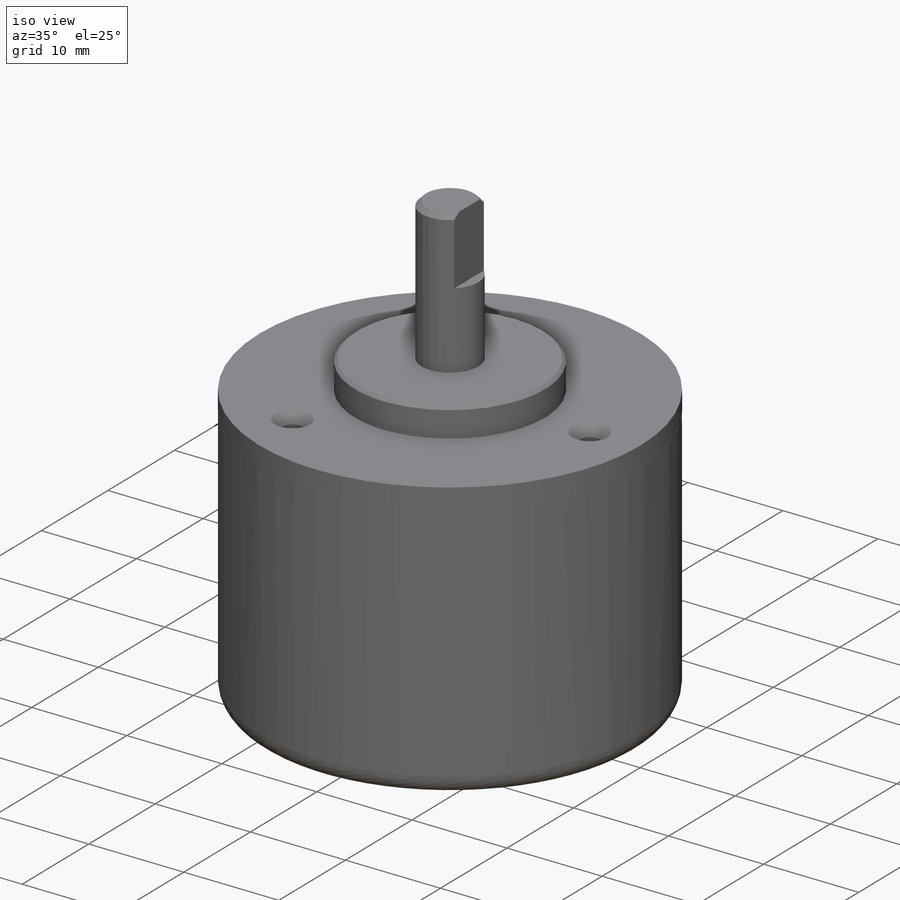
[diagram: iso view]
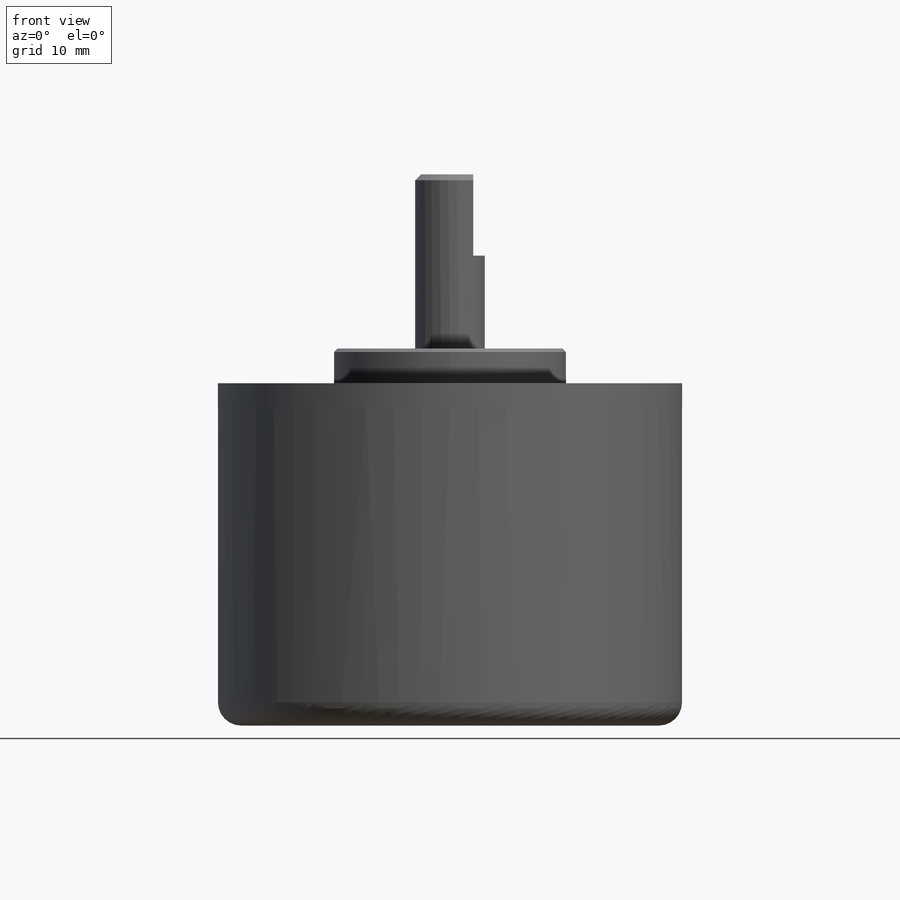
[diagram: front view]
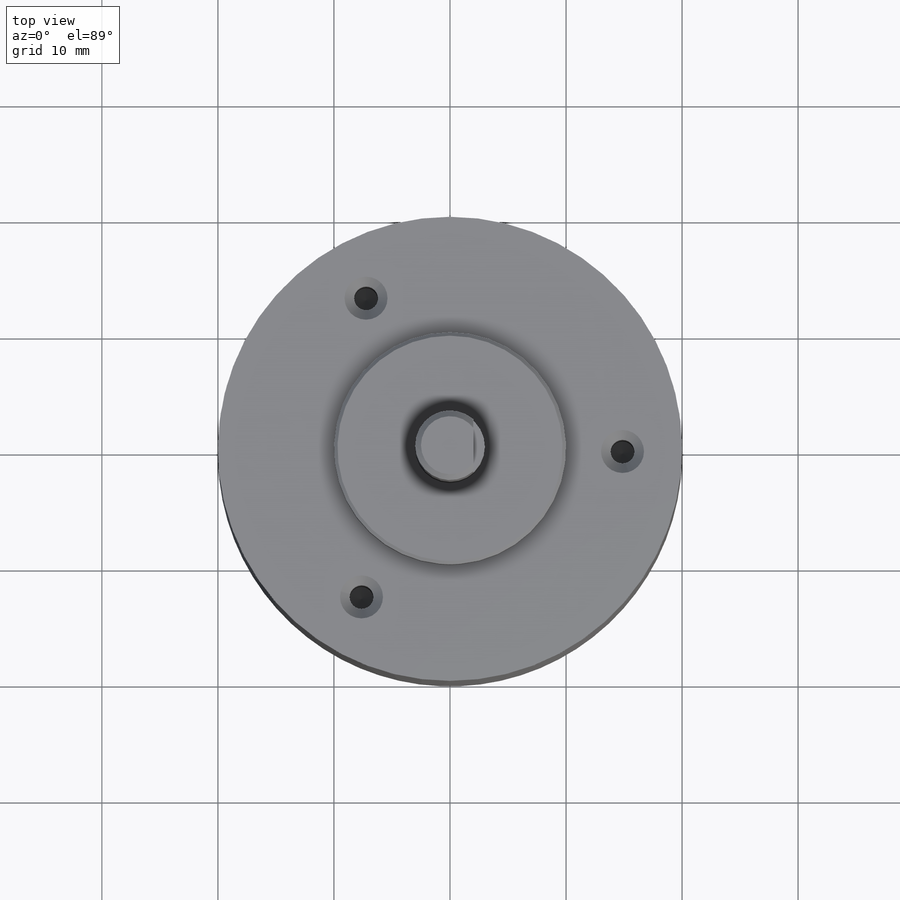
[diagram: top view]
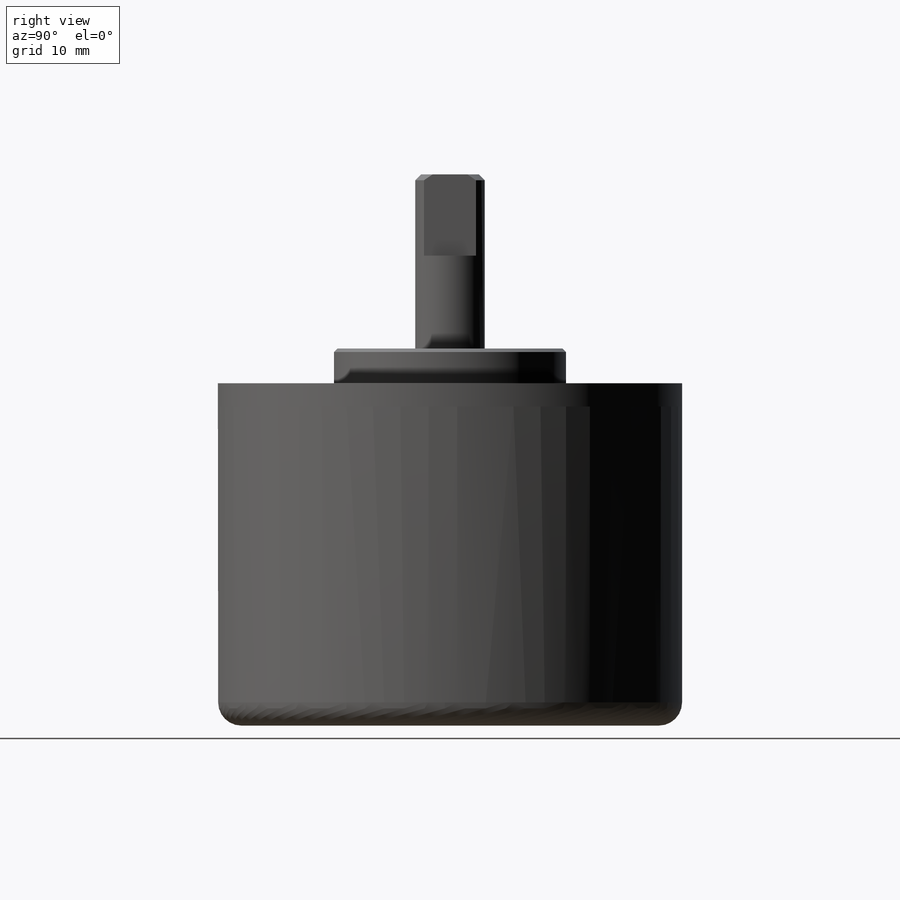
[diagram: right view]
SOLIDWORKS PART (.sldprt)
format: sldprt  version: not decoded by parser v0  size: 261,632 bytes
history: native  units: mm
features: sketch x7, extrude x4, plane x3, chamfer x2, material x1, fillet x1, cut_extrude x1, hole x1, pattern_circular x1 (+9 scaffold rows collapsed)
feature tree (30):
  scaffold x9  (default folders/planes/origin — collapsed)
  material  "Material <not specified>"
  plane  "Alzado"
  plane  "Planta"
  plane  "Vista lateral"
  sketch  "Croquis1"  dims[D1=~22.213746mm]
  extrude  "Saliente-Extruir1"  Depth=2mm
  sketch  "Croquis2"  dims[D1=~4.994407mm]
  extrude  "Saliente-Extruir2"  Depth=3mm
  sketch  "Croquis3"  dims[D1=~2.926487mm]
  extrude  "Saliente-Extruir3"  Depth=15mm
  chamfer  "Chaflán1"  Distance=0.5mm Angle=45deg
  chamfer  "Chaflán2"  Distance=0.3mm Angle=45deg
  sketch  "Croquis4"
  extrude  "Saliente-Extruir4"  Depth=27.5mm
  fillet  "Redondeo1"  Radius=2mm
  sketch  "Croquis6"  dims[c1.D1=2.0mm c1.D2=2.0mm c1.D3=2.0mm c2.D1=2.0mm c2.D2=6.0mm c2.D3=4.0mm c2.D4=3.0mm]
  cut_extrude  "Cortar-Extruir2"  Depth=7mm
  hole  "Avellanado para tornillo con cabeza ovalada de #11"  Depth=10mm  [1 undecoded]
  sketch  "Croquis3D3"  dims[D1=15.0mm]
  sketch  "Croquis9"  dims[hole-wizard template sketch: 39 standard entries collapsed; hole parameters kept: c13.Diámetro de taladro=2.0574mm c13.Profundidad de taladro=10.0mm c13.Ángulo de avellanado cercano=3.7084mm c13.D4=~33.297463mm c13.Ángulo de avellanado lejano=82.0deg c14.D5=~14.816244mm c14.Ángulo de perforador=118.0deg]
  pattern_circular  "MatrizC8"  Count=3 Angle=120deg
decode coverage: 16 of 17 modeling features carry decoded parameters
note: ~ marks probable driven/reference dimensions
note: 1 parameter value undecoded
note: suppression state not decoded; provenance and decode notes live in map.json
